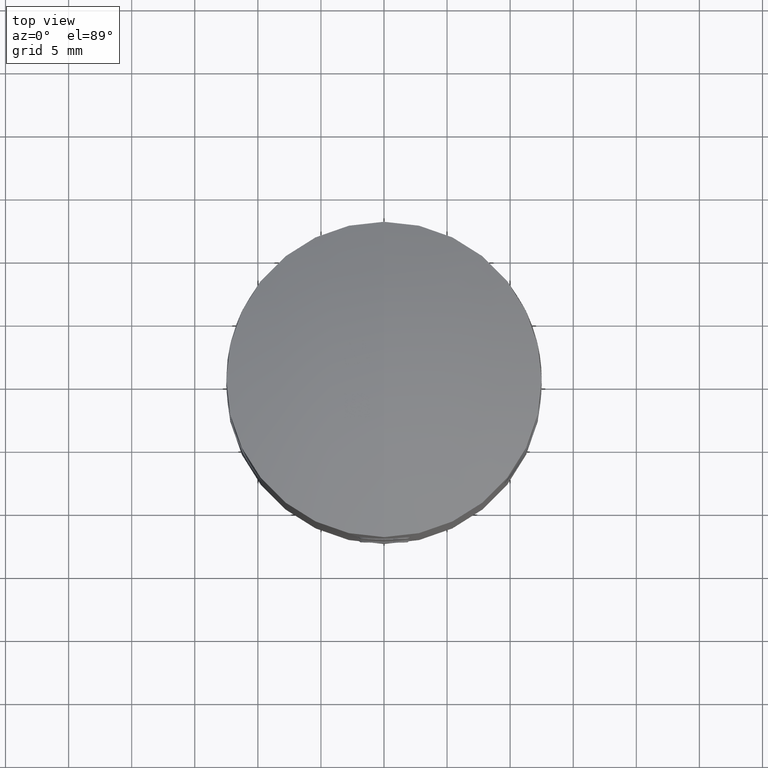
[diagram: clean part render]
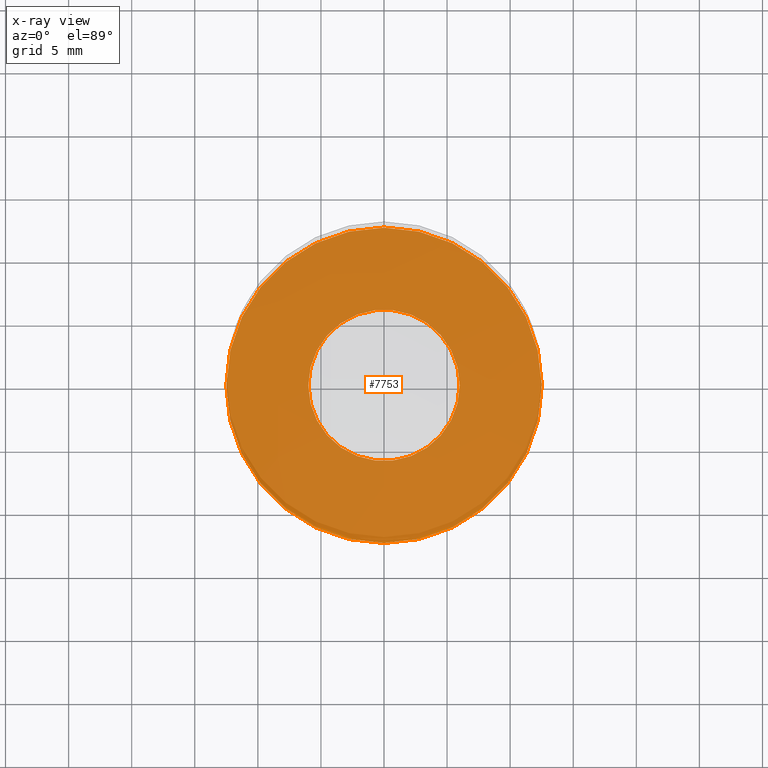
[diagram: x-ray — body ghosted, one internal face saturated and labeled with its STEP entity id]
A machine part, top view, then the same camera in x-ray: the body is ghosted and one INTERNAL B-rep face — a face not visible from any outside direction — is saturated and labeled: STEP entity #7753.
In plain terms, the highlighted planar face has unit normal (0, 0, 1).
Its self-contained STEP definition (entity closure, byte-faithful):
#776 = EDGE_LOOP ( 'NONE', ( #16240, #6303 ) ) ;
#1237 = DIRECTION ( 'NONE',  ( 0.000000000000000000, 0.000000000000000000, 1.000000000000000000 ) ) ;
#1287 = ORIENTED_EDGE ( 'NONE', *, *, #12504, .F. ) ;
#1578 = DIRECTION ( 'NONE',  ( -0.000000000000000000, -0.000000000000000000, -1.000000000000000000 ) ) ;
#2675 = CARTESIAN_POINT ( 'NONE',  ( 12.50000000000000000, 1.530808498934191521E-15, -7.500000000000000000 ) ) ;
#2961 = AXIS2_PLACEMENT_3D ( 'NONE', #17148, #1578, #17083 ) ;
#4195 = CARTESIAN_POINT ( 'NONE',  ( 0.000000000000000000, 5.999999999999998224, -7.500000000000000000 ) ) ;
#4222 = CARTESIAN_POINT ( 'NONE',  ( 5.999999999999998224, 7.347880794884117764E-16, -7.500000000000000000 ) ) ;
#4379 = PLANE ( 'NONE',  #13779 ) ;
#4394 = DIRECTION ( 'NONE',  ( -0.000000000000000000, -0.000000000000000000, -1.000000000000000000 ) ) ;
#4521 = VERTEX_POINT ( 'NONE', #17119 ) ;
#5197 = DIRECTION ( 'NONE',  ( -0.000000000000000000, -0.000000000000000000, -1.000000000000000000 ) ) ;
#6303 = ORIENTED_EDGE ( 'NONE', *, *, #15141, .T. ) ;
#6555 = AXIS2_PLACEMENT_3D ( 'NONE', #13654, #4394, #16740 ) ;
#7198 = VERTEX_POINT ( 'NONE', #4222 ) ;
#7753 = ADVANCED_FACE ( 'NONE', ( #15071, #11926 ), #4379, .T. ) ;
#7863 = CARTESIAN_POINT ( 'NONE',  ( -5.999999999999998224, 0.000000000000000000, -7.500000000000000000 ) ) ;
#8086 = DIRECTION ( 'NONE',  ( -1.000000000000000000, 0.000000000000000000, 0.000000000000000000 ) ) ;
#8214 = DIRECTION ( 'NONE',  ( -0.000000000000000000, -0.000000000000000000, -1.000000000000000000 ) ) ;
#10292 = AXIS2_PLACEMENT_3D ( 'NONE', #17263, #5197, #8086 ) ;
#10596 = ORIENTED_EDGE ( 'NONE', *, *, #17301, .F. ) ;
#10899 = CIRCLE ( 'NONE', #6555, 12.50000000000000000 ) ;
#11926 = FACE_OUTER_BOUND ( 'NONE', #14116, .T. ) ;
#12134 = DIRECTION ( 'NONE',  ( 1.000000000000000000, 0.000000000000000000, -0.000000000000000000 ) ) ;
#12504 = EDGE_CURVE ( 'NONE', #16630, #4521, #10899, .T. ) ;
#12683 = CIRCLE ( 'NONE', #15926, 5.999999999999998224 ) ;
#13479 = EDGE_CURVE ( 'NONE', #15518, #7198, #17444, .T. ) ;
#13641 = CIRCLE ( 'NONE', #10292, 12.50000000000000000 ) ;
#13654 = CARTESIAN_POINT ( 'NONE',  ( 0.000000000000000000, 0.000000000000000000, -7.500000000000000000 ) ) ;
#13779 = AXIS2_PLACEMENT_3D ( 'NONE', #4195, #1237, #12134 ) ;
#14116 = EDGE_LOOP ( 'NONE', ( #10596, #1287 ) ) ;
#14377 = CARTESIAN_POINT ( 'NONE',  ( 0.000000000000000000, 0.000000000000000000, -7.500000000000000000 ) ) ;
#15071 = FACE_BOUND ( 'NONE', #776, .T. ) ;
#15141 = EDGE_CURVE ( 'NONE', #7198, #15518, #12683, .T. ) ;
#15518 = VERTEX_POINT ( 'NONE', #7863 ) ;
#15800 = DIRECTION ( 'NONE',  ( -1.000000000000000000, 0.000000000000000000, 0.000000000000000000 ) ) ;
#15926 = AXIS2_PLACEMENT_3D ( 'NONE', #14377, #8214, #15800 ) ;
#16240 = ORIENTED_EDGE ( 'NONE', *, *, #13479, .T. ) ;
#16630 = VERTEX_POINT ( 'NONE', #2675 ) ;
#16740 = DIRECTION ( 'NONE',  ( -1.000000000000000000, 0.000000000000000000, 0.000000000000000000 ) ) ;
#17083 = DIRECTION ( 'NONE',  ( -1.000000000000000000, 0.000000000000000000, 0.000000000000000000 ) ) ;
#17119 = CARTESIAN_POINT ( 'NONE',  ( -12.50000000000000000, 0.000000000000000000, -7.500000000000000000 ) ) ;
#17148 = CARTESIAN_POINT ( 'NONE',  ( 0.000000000000000000, 0.000000000000000000, -7.500000000000000000 ) ) ;
#17263 = CARTESIAN_POINT ( 'NONE',  ( 0.000000000000000000, 0.000000000000000000, -7.500000000000000000 ) ) ;
#17301 = EDGE_CURVE ( 'NONE', #4521, #16630, #13641, .T. ) ;
#17444 = CIRCLE ( 'NONE', #2961, 5.999999999999998224 ) ;